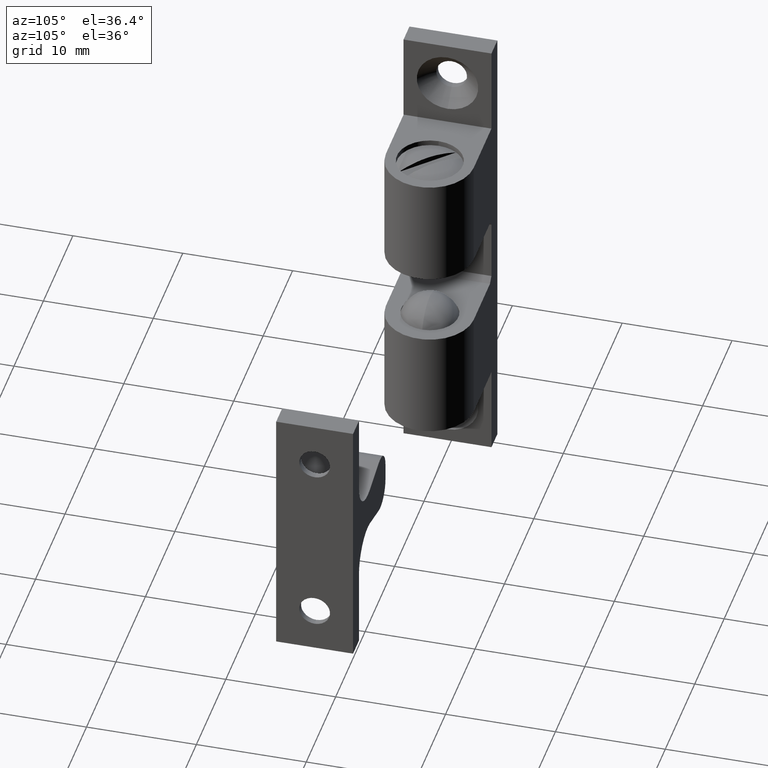
[diagram: clean part render]
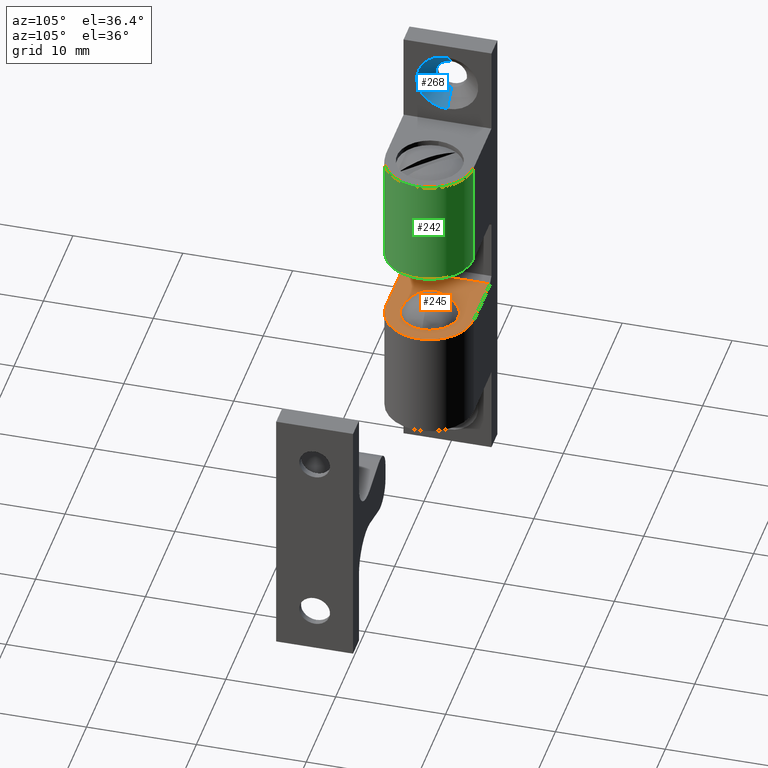
[diagram: same view with three faces highlighted in distinct colors, each labeled with its STEP entity id]
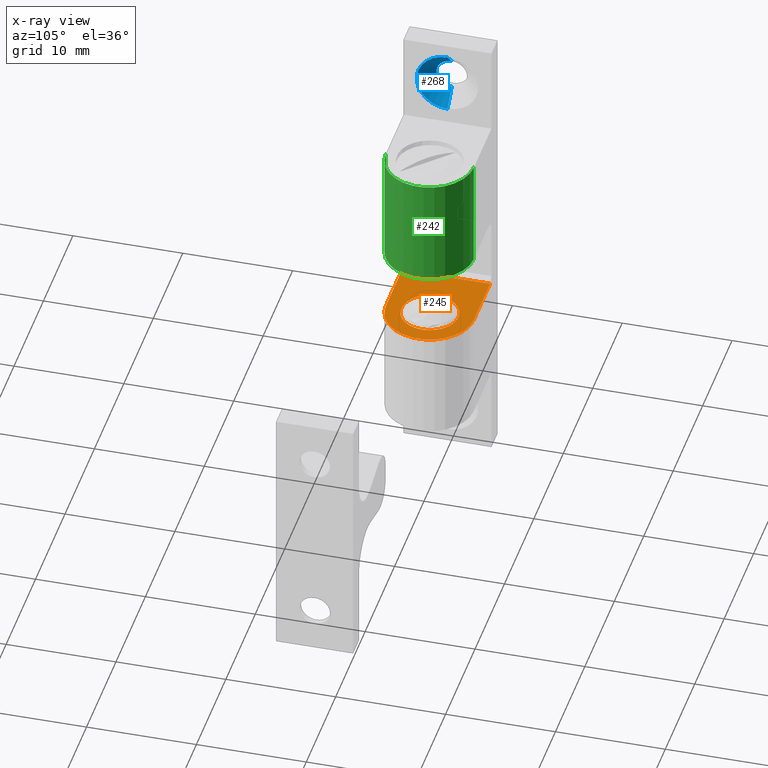
[diagram: x-ray of the same camera — body ghosted, the three highlighted faces saturated]
A machine part, auxiliary view with three faces highlighted in distinct colors.
The next image is the same camera in x-ray (body ghosted, the three faces saturated) — at least one of them is partly hidden behind the body in this view.
Their STEP definitions:

[orange] entity #245 — the highlighted planar face has unit normal (0, 0, -1).
#245=ADVANCED_FACE('',(#692,#693),#691,.F.);
#691=PLANE('',#1227);
#692=FACE_OUTER_BOUND('',#1228,.T.);
#693=FACE_BOUND('',#1229,.T.);
#1224=CARTESIAN_POINT('',(1.29500000000E+01,-4.80000000000E+00,-3.30000000000E+00));
#1225=DIRECTION('',(0.00000000000E+00,0.00000000000E+00,-1.00000000000E+00));
#1226=DIRECTION('',(-1.00000000000E+00,0.00000000000E+00,0.00000000000E+00));
#1227=AXIS2_PLACEMENT_3D('',#1224,#1225,#1226);
#1228=EDGE_LOOP('',(#1596,#1597,#1598,#1599));
#1229=EDGE_LOOP('',(#1600,#1601));
#1596=ORIENTED_EDGE('',*,*,#1832,.T.);
#1597=ORIENTED_EDGE('',*,*,#1813,.F.);
#1598=ORIENTED_EDGE('',*,*,#1843,.F.);
#1599=ORIENTED_EDGE('',*,*,#1844,.F.);
#1600=ORIENTED_EDGE('',*,*,#1845,.T.);
#1601=ORIENTED_EDGE('',*,*,#1846,.T.);
#1813=EDGE_CURVE('',#2431,#2424,#2438,.T.);
#1832=EDGE_CURVE('',#2570,#2424,#2571,.T.);
#1843=EDGE_CURVE('',#2641,#2431,#2642,.T.);
#1844=EDGE_CURVE('',#2570,#2641,#2648,.T.);
#1845=EDGE_CURVE('',#2654,#2655,#2656,.T.);
#1846=EDGE_CURVE('',#2655,#2654,#2662,.T.);
#2424=VERTEX_POINT('',#3312);
#2431=VERTEX_POINT('',#3316);
#2438=LINE('',#3320,#3321);
#2570=VERTEX_POINT('',#3401);
#2571=LINE('',#3402,#3403);
#2641=VERTEX_POINT('',#3441);
#2642=LINE('',#3442,#3443);
#2648=CIRCLE('',#3448,4.00000000000E+00);
#2654=VERTEX_POINT('',#3449);
#2655=VERTEX_POINT('',#3450);
#2656=CIRCLE('',#3454,2.60015384160E+00);
#2662=CIRCLE('',#3458,2.60015384160E+00);
#3312=CARTESIAN_POINT('',(2.50000000000E+00,4.00000000000E+00,-3.30000000000E+00));
#3316=CARTESIAN_POINT('',(2.50000000000E+00,-4.00000000000E+00,-3.30000000000E+00));
#3320=CARTESIAN_POINT('',(2.50000000000E+00,-4.00000000000E+00,-3.30000000000E+00));
#3321=VECTOR('',#3322,8.00000000000E+00);
#3322=DIRECTION('',(0.00000000000E+00,1.00000000000E+00,0.00000000000E+00));
#3401=CARTESIAN_POINT('',(8.00000000000E+00,4.00000000000E+00,-3.30000000000E+00));
#3402=CARTESIAN_POINT('',(8.00000000000E+00,4.00000000000E+00,-3.30000000000E+00));
#3403=VECTOR('',#3404,5.50000000000E+00);
#3404=DIRECTION('',(-1.00000000000E+00,0.00000000000E+00,0.00000000000E+00));
#3441=CARTESIAN_POINT('',(8.00000000000E+00,-4.00000000000E+00,-3.30000000000E+00));
#3442=CARTESIAN_POINT('',(8.00000000000E+00,-4.00000000000E+00,-3.30000000000E+00));
#3443=VECTOR('',#3444,5.50000000000E+00);
#3444=DIRECTION('',(-1.00000000000E+00,0.00000000000E+00,0.00000000000E+00));
#3445=CARTESIAN_POINT('',(8.00000000000E+00,0.00000000000E+00,-3.30000000000E+00));
#3446=DIRECTION('',(0.00000000000E+00,0.00000000000E+00,-1.00000000000E+00));
#3447=DIRECTION('',(-1.83690953073E-16,1.00000000000E+00,0.00000000000E+00));
#3448=AXIS2_PLACEMENT_3D('',#3445,#3446,#3447);
#3449=CARTESIAN_POINT('',(5.39984615840E+00,0.00000000000E+00,-3.30000000000E+00));
#3450=CARTESIAN_POINT('',(1.06001538416E+01,1.48029736617E-16,-3.30000000000E+00));
#3451=CARTESIAN_POINT('',(8.00000000000E+00,0.00000000000E+00,-3.30000000000E+00));
#3452=DIRECTION('',(-0.00000000000E+00,0.00000000000E+00,-1.00000000000E+00));
#3453=DIRECTION('',(-1.00000000000E+00,-1.22460635382E-16,0.00000000000E+00));
#3454=AXIS2_PLACEMENT_3D('',#3451,#3452,#3453);
#3455=CARTESIAN_POINT('',(8.00000000000E+00,0.00000000000E+00,-3.30000000000E+00));
#3456=DIRECTION('',(-0.00000000000E+00,0.00000000000E+00,-1.00000000000E+00));
#3457=DIRECTION('',(-1.00000000000E+00,-1.22460635382E-16,0.00000000000E+00));
#3458=AXIS2_PLACEMENT_3D('',#3455,#3456,#3457);

[blue] entity #268 — the highlighted face is a freeform B-spline surface patch.
#268=ADVANCED_FACE('',(#929),#928,.F.);
#928=( BOUNDED_SURFACE() B_SPLINE_SURFACE( 2,1,((#1346,#1347),(#1348,#1349),(#1350,#1351),(#1352,#1353),(#1354,#1355)), .UNSPECIFIED.,.F.,.F.,.F.) B_SPLINE_SURFACE_WITH_KNOTS((3,2,3),(2,2),(0.00000000000E+00,5.00000000000E-01,1.00000000000E+00),(0.00000000000E+00,1.00000000000E+00), .UNSPECIFIED. ) GEOMETRIC_REPRESENTATION_ITEM() RATIONAL_B_SPLINE_SURFACE(((1.00000000000E+00,1.00000000000E+00),(7.07106781187E-01,7.07106781187E-01),(1.00000000000E+00,1.00000000000E+00),(7.07106781187E-01,7.07106781187E-01),(1.00000000000E+00,1.00000000000E+00))) REPRESENTATION_ITEM('') SURFACE() );
#929=FACE_OUTER_BOUND('',#1356,.T.);
#1346=CARTESIAN_POINT('',(6.00000000000E-01,-3.42901103761E-16,1.89000000000E+01));
#1347=CARTESIAN_POINT('',(2.00000000000E+00,-6.85802207523E-16,2.03000000000E+01));
#1348=CARTESIAN_POINT('',(6.00000000000E-01,-1.40000000000E+00,1.89000000000E+01));
#1349=CARTESIAN_POINT('',(2.00000000000E+00,-2.80000000000E+00,2.03000000000E+01));
#1350=CARTESIAN_POINT('',(6.00000000000E-01,-1.40000000000E+00,1.75000000000E+01));
#1351=CARTESIAN_POINT('',(2.00000000000E+00,-2.80000000000E+00,1.75000000000E+01));
#1352=CARTESIAN_POINT('',(6.00000000000E-01,-1.40000000000E+00,1.61000000000E+01));
#1353=CARTESIAN_POINT('',(2.00000000000E+00,-2.80000000000E+00,1.47000000000E+01));
#1354=CARTESIAN_POINT('',(6.00000000000E-01,1.71450551881E-16,1.61000000000E+01));
#1355=CARTESIAN_POINT('',(2.00000000000E+00,3.42901103761E-16,1.47000000000E+01));
#1356=EDGE_LOOP('',(#1708,#1709,#1710,#1711));
#1708=ORIENTED_EDGE('',*,*,#1889,.T.);
#1709=ORIENTED_EDGE('',*,*,#1890,.T.);
#1710=ORIENTED_EDGE('',*,*,#1854,.F.);
#1711=ORIENTED_EDGE('',*,*,#1891,.F.);
#1854=EDGE_CURVE('',#2710,#2709,#2717,.T.);
#1889=EDGE_CURVE('',#2924,#2931,#2944,.T.);
#1890=EDGE_CURVE('',#2931,#2709,#2950,.T.);
#1891=EDGE_CURVE('',#2924,#2710,#2956,.T.);
#2709=VERTEX_POINT('',#3486);
#2710=VERTEX_POINT('',#3487);
#2717=CIRCLE('',#3495,2.80000000000E+00);
#2924=VERTEX_POINT('',#3611);
#2931=VERTEX_POINT('',#3614);
#2944=CIRCLE('',#3624,1.40000000000E+00);
#2950=(BOUNDED_CURVE() B_SPLINE_CURVE(1,(#3625,#3626),.UNSPECIFIED.,.F.,.F.) B_SPLINE_CURVE_WITH_KNOTS((2,2),(0.00000000000E+00,1.00000000000E+00),.UNSPECIFIED.) CURVE() GEOMETRIC_REPRESENTATION_ITEM() RATIONAL_B_SPLINE_CURVE((1.00000000000E+00,1.00000000000E+00)) REPRESENTATION_ITEM('') );
#2956=(BOUNDED_CURVE() B_SPLINE_CURVE(1,(#3627,#3628),.UNSPECIFIED.,.F.,.F.) B_SPLINE_CURVE_WITH_KNOTS((2,2),(0.00000000000E+00,1.00000000000E+00),.UNSPECIFIED.) CURVE() GEOMETRIC_REPRESENTATION_ITEM() RATIONAL_B_SPLINE_CURVE((7.50000000000E-01,7.50000000000E-01)) REPRESENTATION_ITEM('') );
#3486=CARTESIAN_POINT('',(2.00000000000E+00,0.00000000000E+00,2.03000000000E+01));
#3487=CARTESIAN_POINT('',(2.00000000000E+00,1.48029736617E-16,1.47000000000E+01));
#3492=CARTESIAN_POINT('',(2.00000000000E+00,0.00000000000E+00,1.75000000000E+01));
#3493=DIRECTION('',(-1.00000000000E+00,0.00000000000E+00,0.00000000000E+00));
#3494=DIRECTION('',(0.00000000000E+00,-1.22460635382E-16,1.00000000000E+00));
#3495=AXIS2_PLACEMENT_3D('',#3492,#3493,#3494);
#3611=CARTESIAN_POINT('',(6.00000000000E-01,1.48029736617E-16,1.61000000000E+01));
#3614=CARTESIAN_POINT('',(6.00000000000E-01,0.00000000000E+00,1.89000000000E+01));
#3621=CARTESIAN_POINT('',(6.00000000000E-01,0.00000000000E+00,1.75000000000E+01));
#3622=DIRECTION('',(-1.00000000000E+00,0.00000000000E+00,0.00000000000E+00));
#3623=DIRECTION('',(0.00000000000E+00,-1.22460635382E-16,1.00000000000E+00));
#3624=AXIS2_PLACEMENT_3D('',#3621,#3622,#3623);
#3625=CARTESIAN_POINT('',(6.00000000000E-01,-3.42889779070E-16,1.89000000000E+01));
#3626=CARTESIAN_POINT('',(2.00000000000E+00,-6.85779558141E-16,2.03000000000E+01));
#3627=CARTESIAN_POINT('',(6.00000000000E-01,3.70074341542E-16,1.61000000000E+01));
#3628=CARTESIAN_POINT('',(2.00000000000E+00,8.88178419700E-16,1.47000000000E+01));

[green] entity #242 — the highlighted cylindrical surface (partial cylindrical patch) has radius 4 mm, axis along (0, 0, 1).
#242=ADVANCED_FACE('',(#662),#661,.T.);
#661=CYLINDRICAL_SURFACE('',#1212,4.00000000000E+00);
#662=FACE_OUTER_BOUND('',#1213,.T.);
#1209=CARTESIAN_POINT('',(8.00000000000E+00,0.00000000000E+00,9.78500000000E+02));
#1210=DIRECTION('',(-0.00000000000E+00,-0.00000000000E+00,1.00000000000E+00));
#1211=DIRECTION('',(-1.00000000000E+00,1.22464679915E-16,0.00000000000E+00));
#1212=AXIS2_PLACEMENT_3D('',#1209,#1210,#1211);
#1213=EDGE_LOOP('',(#1584,#1585,#1586,#1587));
#1584=ORIENTED_EDGE('',*,*,#1830,.F.);
#1585=ORIENTED_EDGE('',*,*,#1837,.T.);
#1586=ORIENTED_EDGE('',*,*,#1838,.T.);
#1587=ORIENTED_EDGE('',*,*,#1839,.T.);
#1830=EDGE_CURVE('',#2550,#2557,#2558,.T.);
#1837=EDGE_CURVE('',#2550,#2602,#2603,.T.);
#1838=EDGE_CURVE('',#2602,#2609,#2610,.T.);
#1839=EDGE_CURVE('',#2609,#2557,#2616,.T.);
#2550=VERTEX_POINT('',#3390);
#2557=VERTEX_POINT('',#3394);
#2558=LINE('',#3395,#3396);
#2602=VERTEX_POINT('',#3418);
#2603=CIRCLE('',#3422,4.00000000000E+00);
#2609=VERTEX_POINT('',#3423);
#2610=LINE('',#3424,#3425);
#2616=CIRCLE('',#3430,4.00000000000E+00);
#3390=CARTESIAN_POINT('',(8.00000000000E+00,4.00000000000E+00,1.33000000000E+01));
#3394=CARTESIAN_POINT('',(8.00000000000E+00,4.00000000000E+00,3.30000000000E+00));
#3395=CARTESIAN_POINT('',(8.00000000000E+00,4.00000000000E+00,1.33000000000E+01));
#3396=VECTOR('',#3397,1.00000000000E+01);
#3397=DIRECTION('',(0.00000000000E+00,0.00000000000E+00,-1.00000000000E+00));
#3418=CARTESIAN_POINT('',(8.00000000000E+00,-4.00000000000E+00,1.33000000000E+01));
#3419=CARTESIAN_POINT('',(8.00000000000E+00,0.00000000000E+00,1.33000000000E+01));
#3420=DIRECTION('',(0.00000000000E+00,0.00000000000E+00,-1.00000000000E+00));
#3421=DIRECTION('',(-1.83690953073E-16,1.00000000000E+00,0.00000000000E+00));
#3422=AXIS2_PLACEMENT_3D('',#3419,#3420,#3421);
#3423=CARTESIAN_POINT('',(8.00000000000E+00,-4.00000000000E+00,3.30000000000E+00));
#3424=CARTESIAN_POINT('',(8.00000000000E+00,-4.00000000000E+00,1.33000000000E+01));
#3425=VECTOR('',#3426,1.00000000000E+01);
#3426=DIRECTION('',(0.00000000000E+00,0.00000000000E+00,-1.00000000000E+00));
#3427=CARTESIAN_POINT('',(8.00000000000E+00,0.00000000000E+00,3.30000000000E+00));
#3428=DIRECTION('',(-0.00000000000E+00,0.00000000000E+00,1.00000000000E+00));
#3429=DIRECTION('',(-1.00000000000E+00,-0.00000000000E+00,-0.00000000000E+00));
#3430=AXIS2_PLACEMENT_3D('',#3427,#3428,#3429);